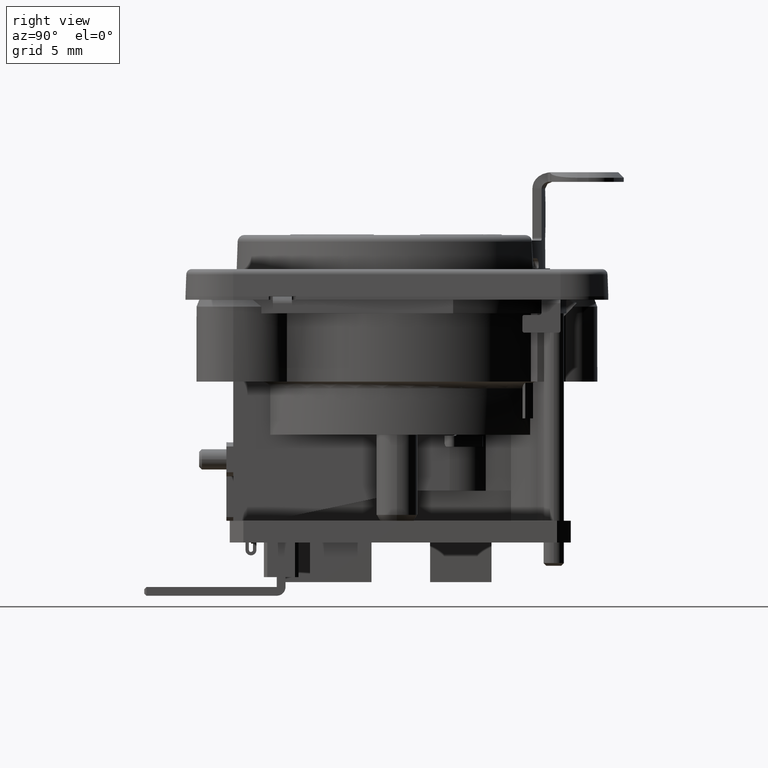
[diagram: clean part render]
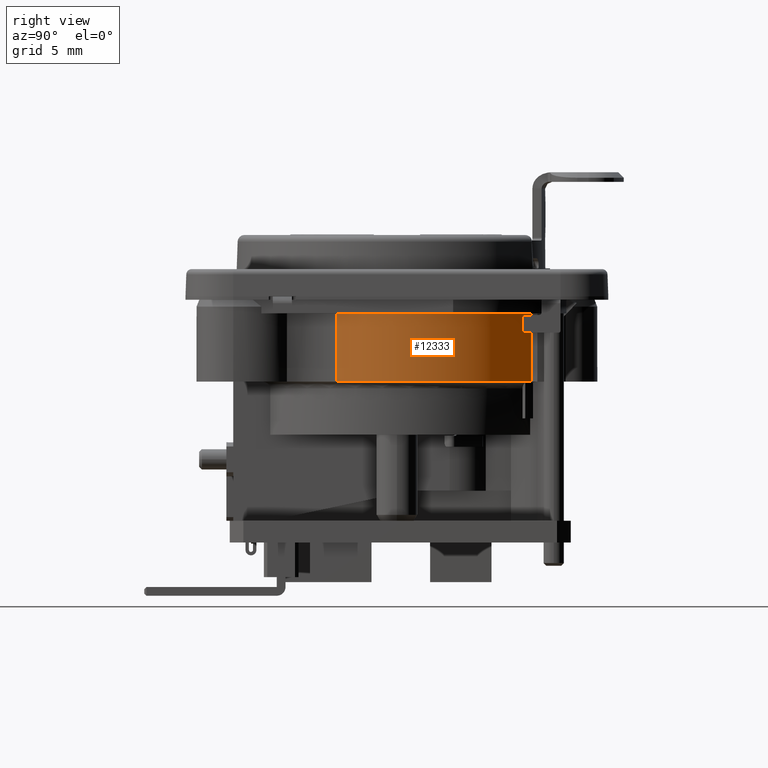
[diagram: same view with one face highlighted and labeled with its STEP entity id]
A machine part, right view. The second image highlights one B-rep face of the part: STEP entity #12333.
In plain terms, the highlighted cylindrical surface (partial cylindrical patch) has radius 11.5 mm, axis along (0, 0, -1).
Its self-contained STEP definition (entity closure, byte-faithful):
#1177=CARTESIAN_POINT('',(0.E0,0.E0,-1.08E1));
#1178=DIRECTION('',(0.E0,0.E0,1.E0));
#1179=DIRECTION('',(9.234234809587E-1,-3.837825879506E-1,0.E0));
#1180=AXIS2_PLACEMENT_3D('',#1177,#1178,#1179);
#2422=CARTESIAN_POINT('',(0.E0,0.E0,-5.8E0));
#2423=DIRECTION('',(0.E0,0.E0,-1.E0));
#2424=DIRECTION('',(5.193827755058E-1,8.545417090510E-1,0.E0));
#2425=AXIS2_PLACEMENT_3D('',#2422,#2423,#2424);
#2556=DIRECTION('',(6.590953560703E-10,-4.170022549488E-10,-1.E0));
#2557=VECTOR('',#2556,5.E0);
#2558=CARTESIAN_POINT('',(5.972901918317E0,9.827229654087E0,-5.8E0));
#2559=LINE('',#2558,#2557);
#2560=DIRECTION('',(6.765138130104E-6,2.242418401015E-5,-9.999999997257E-1));
#2561=VECTOR('',#2560,5.000000001535E0);
#2562=CARTESIAN_POINT('',(1.061937003103E1,-4.413499761432E0,-5.8E0));
#2563=LINE('',#2562,#2561);
#6930=CARTESIAN_POINT('',(1.061937003103E1,-4.413499761432E0,-5.8E0));
#6932=VERTEX_POINT('',#6930);
#6935=CARTESIAN_POINT('',(1.061940385672E1,-4.413387640512E0,
-1.080000000016E1));
#6936=VERTEX_POINT('',#6935);
#6937=CARTESIAN_POINT('',(5.972901918317E0,9.827229654087E0,-5.8E0));
#6938=VERTEX_POINT('',#6937);
#6945=CARTESIAN_POINT('',(5.972901921613E0,9.827229652002E0,-1.08E1));
#6946=VERTEX_POINT('',#6945);
#12321=CARTESIAN_POINT('',(0.E0,0.E0,-5.8E0));
#12322=DIRECTION('',(0.E0,0.E0,-1.E0));
#12323=DIRECTION('',(-1.E0,0.E0,0.E0));
#12324=AXIS2_PLACEMENT_3D('',#12321,#12322,#12323);
#12325=CYLINDRICAL_SURFACE('',#12324,1.15E1);
#12326=ORIENTED_EDGE('',*,*,#10629,.F.);
#12328=ORIENTED_EDGE('',*,*,#12327,.F.);
#12329=ORIENTED_EDGE('',*,*,#12168,.F.);
#12330=ORIENTED_EDGE('',*,*,#12314,.T.);
#12331=EDGE_LOOP('',(#12326,#12328,#12329,#12330));
#12332=FACE_OUTER_BOUND('',#12331,.F.);
#12333=ADVANCED_FACE('',(#12332),#12325,.T.);
#1181=CIRCLE('',#1180,1.15E1);
#2426=CIRCLE('',#2425,1.15E1);
#10629=EDGE_CURVE('',#6936,#6946,#1181,.T.);
#12168=EDGE_CURVE('',#6938,#6932,#2426,.T.);
#12314=EDGE_CURVE('',#6938,#6946,#2559,.T.);
#12327=EDGE_CURVE('',#6932,#6936,#2563,.T.);